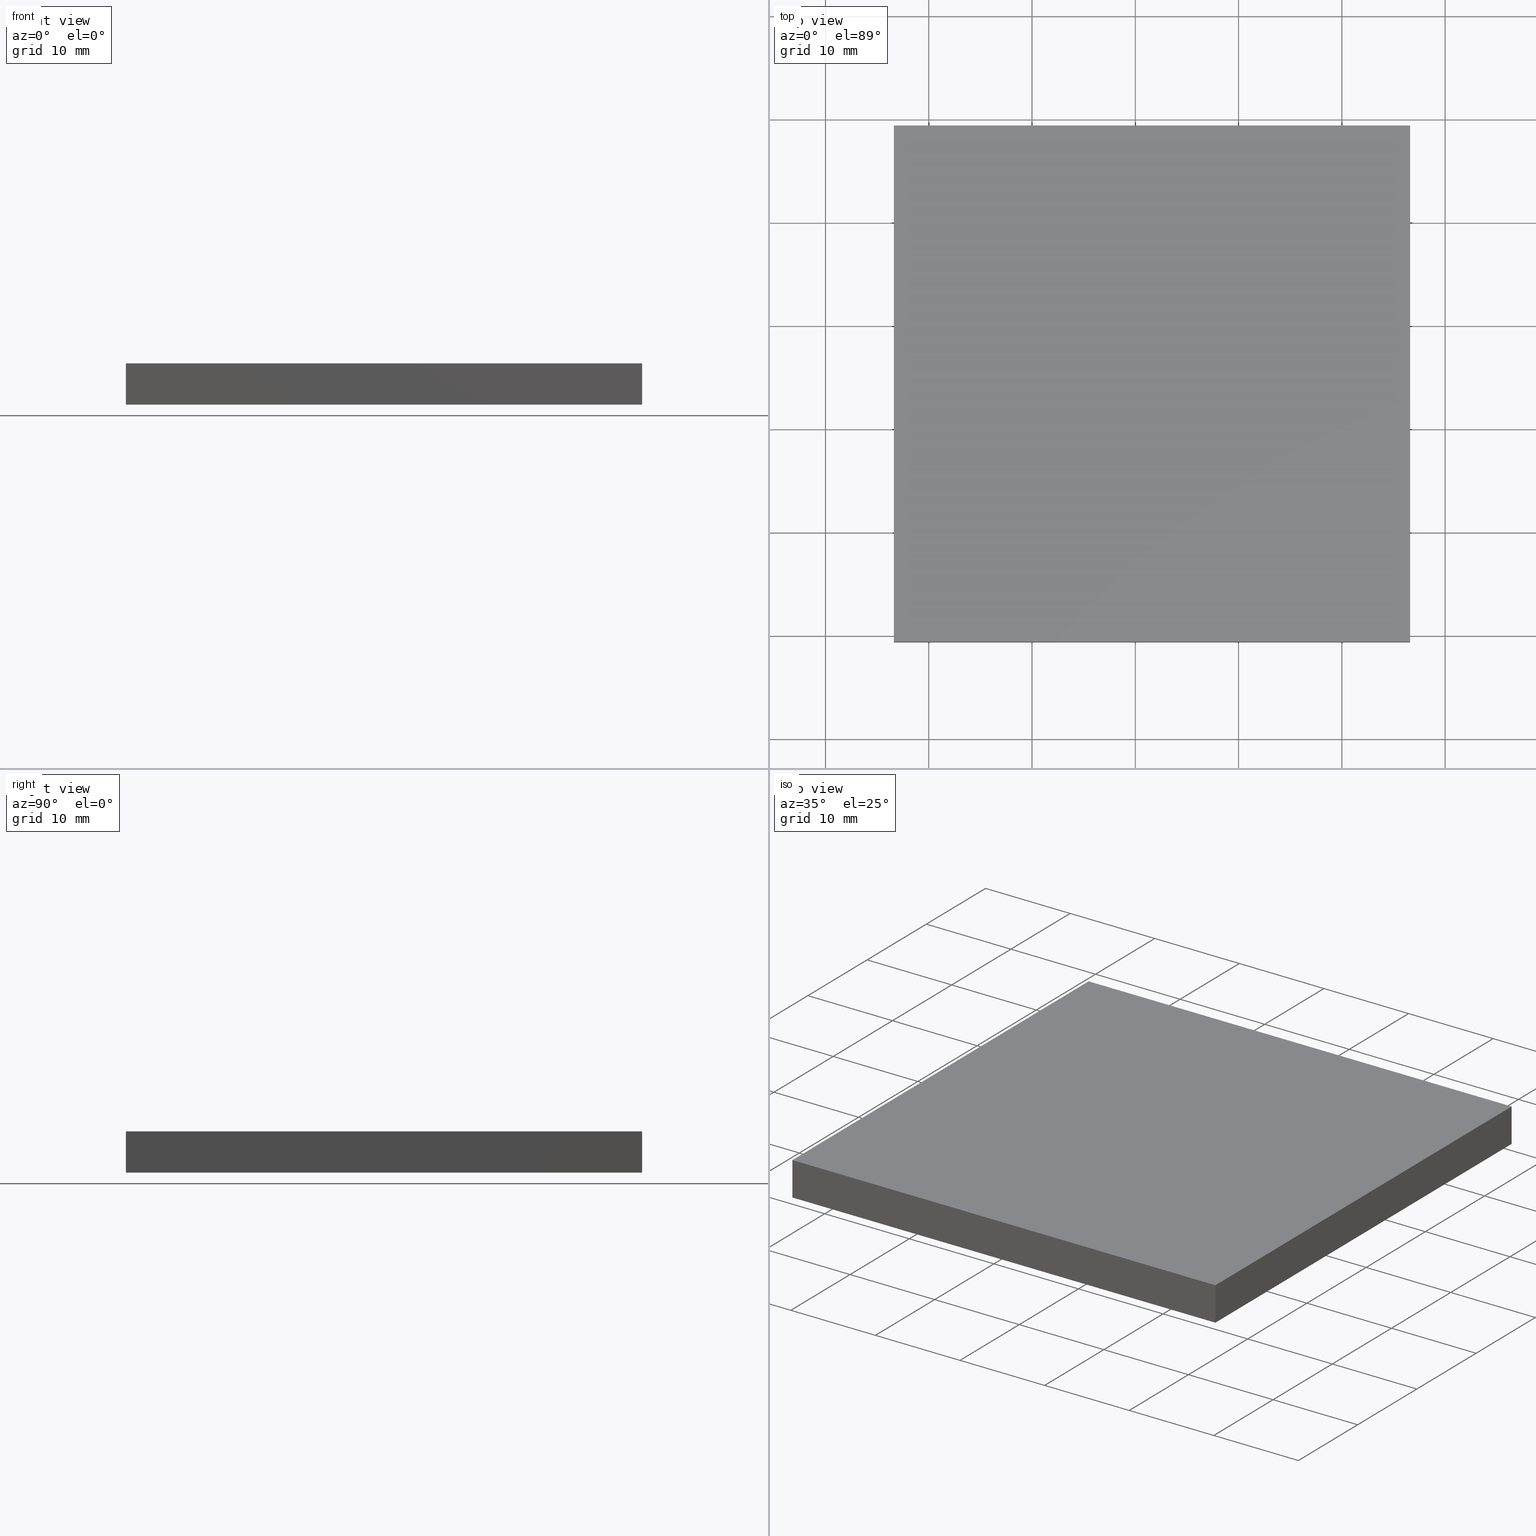
[diagram: canonical four-view strip — front | top / right | iso, engineering-drawing reading convention]
A machine part, canonical four-view strip (front | top / right | iso — engineering-drawing reading convention). The complete STEP part file that produces these views, byte-faithful:
ISO-10303-21;
HEADER;
FILE_DESCRIPTION (( 'STEP AP214' ),
    '1' );
FILE_NAME ('260012.STEP',
    '2019-07-16T03:02:36',
    ( '' ),
    ( '' ),
    'SwSTEP 2.0',
    'SolidWorks 2016',
    '' );
FILE_SCHEMA (( 'AUTOMOTIVE_DESIGN' ));
ENDSEC;

DATA;
#1 = PRODUCT_DEFINITION_SHAPE ( 'NONE', 'NONE',  #145 ) ;
#2 = EDGE_CURVE ( 'NONE', #37, #93, #5, .T. ) ;
#3 = ORIENTED_EDGE ( 'NONE', *, *, #118, .T. ) ;
#4 = LINE ( 'NONE', #100, #159 ) ;
#5 = LINE ( 'NONE', #7, #144 ) ;
#6 = ADVANCED_BREP_SHAPE_REPRESENTATION ( '260012', ( #88, #180 ), #72 ) ;
#7 = CARTESIAN_POINT ( 'NONE',  ( 466.6175434576859400, 179.3843025342640100, 4.000000000000000000 ) ) ;
#8 = VECTOR ( 'NONE', #198, 1000.000000000000000 ) ;
#9 = EDGE_CURVE ( 'NONE', #148, #71, #107, .T. ) ;
#10 = PRESENTATION_STYLE_ASSIGNMENT (( #77 ) ) ;
#11 = DIRECTION ( 'NONE',  ( -0.0000000000000000000, 1.000000000000000000, -0.0000000000000000000 ) ) ;
#12 = SURFACE_SIDE_STYLE ('',( #95 ) ) ;
#13 = STYLED_ITEM ( 'NONE', ( #10 ), #88 ) ;
#14 = VECTOR ( 'NONE', #81, 1000.000000000000000 ) ;
#15 = UNCERTAINTY_MEASURE_WITH_UNIT (LENGTH_MEASURE( 1.000000000000000100E-005 ), #135, 'distance_accuracy_value', 'NONE');
#16 =( LENGTH_UNIT ( ) NAMED_UNIT ( * ) SI_UNIT ( .MILLI., .METRE. ) );
#17 = ADVANCED_FACE ( 'NONE', ( #23 ), #161, .F. ) ;
#18 =( LENGTH_UNIT ( ) NAMED_UNIT ( * ) SI_UNIT ( .MILLI., .METRE. ) );
#19 = PRESENTATION_LAYER_ASSIGNMENT (  '', '', ( #13 ) ) ;
#20 = PRODUCT_DEFINITION_FORMATION_WITH_SPECIFIED_SOURCE ( '�κ�', '', #134, .NOT_KNOWN. ) ;
#21 = FACE_OUTER_BOUND ( 'NONE', #106, .T. ) ;
#22 = VECTOR ( 'NONE', #165, 1000.000000000000000 ) ;
#23 = FACE_OUTER_BOUND ( 'NONE', #86, .T. ) ;
#24 = VECTOR ( 'NONE', #91, 1000.000000000000000 ) ;
#25 = ORIENTED_EDGE ( 'NONE', *, *, #2, .T. ) ;
#26 = CARTESIAN_POINT ( 'NONE',  ( 416.6175434576858800, 179.3843025342640100, 0.0000000000000000000 ) ) ;
#27 = AXIS2_PLACEMENT_3D ( 'NONE', #75, #28, #109 ) ;
#28 = DIRECTION ( 'NONE',  ( 0.0000000000000000000, 1.000000000000000000, -0.0000000000000000000 ) ) ;
#29 = PLANE ( 'NONE',  #27 ) ;
#30 = ORIENTED_EDGE ( 'NONE', *, *, #9, .F. ) ;
#31 = FILL_AREA_STYLE_COLOUR ( '', #162 ) ;
#32 = CARTESIAN_POINT ( 'NONE',  ( 0.0000000000000000000, 0.0000000000000000000, 0.0000000000000000000 ) ) ;
#33 = CARTESIAN_POINT ( 'NONE',  ( 466.6175434576859400, 179.3843025342640100, 4.000000000000000000 ) ) ;
#34 = DIRECTION ( 'NONE',  ( -0.0000000000000000000, -1.000000000000000000, -0.0000000000000000000 ) ) ;
#35 = ORIENTED_EDGE ( 'NONE', *, *, #120, .T. ) ;
#36 = PLANE ( 'NONE',  #55 ) ;
#37 = VERTEX_POINT ( 'NONE', #177 ) ;
#38 = SHAPE_DEFINITION_REPRESENTATION ( #1, #6 ) ;
#39 = EDGE_LOOP ( 'NONE', ( #87, #149, #124, #3 ) ) ;
#40 = VERTEX_POINT ( 'NONE', #195 ) ;
#41 = FILL_AREA_STYLE_COLOUR ( '', #66 ) ;
#42 =( NAMED_UNIT ( * ) SI_UNIT ( $, .STERADIAN. ) SOLID_ANGLE_UNIT ( ) );
#43 = DIRECTION ( 'NONE',  ( 0.0000000000000000000, 0.0000000000000000000, -1.000000000000000000 ) ) ;
#44 = ORIENTED_EDGE ( 'NONE', *, *, #172, .T. ) ;
#45 = CARTESIAN_POINT ( 'NONE',  ( 416.6175434576858800, 129.3843025342640100, 4.000000000000000000 ) ) ;
#46 =( NAMED_UNIT ( * ) SI_UNIT ( $, .STERADIAN. ) SOLID_ANGLE_UNIT ( ) );
#47 = UNCERTAINTY_MEASURE_WITH_UNIT (LENGTH_MEASURE( 1.000000000000000100E-005 ), #16, 'distance_accuracy_value', 'NONE');
#48 = DIRECTION ( 'NONE',  ( 1.000000000000000000, 0.0000000000000000000, 0.0000000000000000000 ) ) ;
#49 = ORIENTED_EDGE ( 'NONE', *, *, #56, .T. ) ;
#50 = AXIS2_PLACEMENT_3D ( 'NONE', #125, #199, #51 ) ;
#51 = DIRECTION ( 'NONE',  ( 0.0000000000000000000, -0.0000000000000000000, -1.000000000000000000 ) ) ;
#52 = SURFACE_STYLE_USAGE ( .BOTH. , #12 ) ;
#53 = FACE_OUTER_BOUND ( 'NONE', #189, .T. ) ;
#54 = CLOSED_SHELL ( 'NONE', ( #82, #160, #142, #104, #17, #166 ) ) ;
#55 = AXIS2_PLACEMENT_3D ( 'NONE', #33, #79, #187 ) ;
#56 = EDGE_CURVE ( 'NONE', #93, #148, #146, .T. ) ;
#57 = VECTOR ( 'NONE', #185, 1000.000000000000000 ) ;
#58 = SURFACE_STYLE_FILL_AREA ( #196 ) ;
#59 = PRODUCT_RELATED_PRODUCT_CATEGORY ( 'part', '', ( #134 ) ) ;
#60 = CARTESIAN_POINT ( 'NONE',  ( 416.6175434576858800, 179.3843025342640100, 0.0000000000000000000 ) ) ;
#61 = LINE ( 'NONE', #181, #14 ) ;
#62 = SURFACE_SIDE_STYLE ('',( #58 ) ) ;
#63 = CARTESIAN_POINT ( 'NONE',  ( 466.6175434576859400, 129.3843025342640100, 4.000000000000000000 ) ) ;
#64 = AXIS2_PLACEMENT_3D ( 'NONE', #154, #140, #163 ) ;
#65 =( NAMED_UNIT ( * ) PLANE_ANGLE_UNIT ( ) SI_UNIT ( $, .RADIAN. ) );
#66 = COLOUR_RGB ( '',1.000000000000000000, 1.000000000000000000, 1.000000000000000000 ) ;
#67 = CARTESIAN_POINT ( 'NONE',  ( 466.6175434576859400, 179.3843025342640100, 0.0000000000000000000 ) ) ;
#68 =( NAMED_UNIT ( * ) PLANE_ANGLE_UNIT ( ) SI_UNIT ( $, .RADIAN. ) );
#69 = LINE ( 'NONE', #113, #57 ) ;
#70 = LINE ( 'NONE', #45, #182 ) ;
#71 = VERTEX_POINT ( 'NONE', #26 ) ;
#72 =( GEOMETRIC_REPRESENTATION_CONTEXT ( 3 ) GLOBAL_UNCERTAINTY_ASSIGNED_CONTEXT ( ( #47 ) ) GLOBAL_UNIT_ASSIGNED_CONTEXT ( ( #16, #65, #78 ) ) REPRESENTATION_CONTEXT ( 'NONE', 'WORKASPACE' ) );
#73 = ORIENTED_EDGE ( 'NONE', *, *, #118, .F. ) ;
#74 = MECHANICAL_DESIGN_GEOMETRIC_PRESENTATION_REPRESENTATION (  '', ( #13 ), #102 ) ;
#75 = CARTESIAN_POINT ( 'NONE',  ( 466.6175434576859400, 129.3843025342640100, 4.000000000000000000 ) ) ;
#76 = ORIENTED_EDGE ( 'NONE', *, *, #120, .F. ) ;
#77 = SURFACE_STYLE_USAGE ( .BOTH. , #62 ) ;
#78 =( NAMED_UNIT ( * ) SI_UNIT ( $, .STERADIAN. ) SOLID_ANGLE_UNIT ( ) );
#79 = DIRECTION ( 'NONE',  ( -1.000000000000000000, 0.0000000000000000000, 0.0000000000000000000 ) ) ;
#80 = STYLED_ITEM ( 'NONE', ( #178 ), #6 ) ;
#81 = DIRECTION ( 'NONE',  ( -0.0000000000000000000, -0.0000000000000000000, -1.000000000000000000 ) ) ;
#82 = ADVANCED_FACE ( 'NONE', ( #21 ), #29, .F. ) ;
#83 = AXIS2_PLACEMENT_3D ( 'NONE', #123, #137, #43 ) ;
#84 = EDGE_CURVE ( 'NONE', #130, #40, #70, .T. ) ;
#85 = LINE ( 'NONE', #63, #90 ) ;
#86 = EDGE_LOOP ( 'NONE', ( #127, #35, #25, #110 ) ) ;
#87 = ORIENTED_EDGE ( 'NONE', *, *, #170, .T. ) ;
#88 = MANIFOLD_SOLID_BREP ( '͹̨-����1', #54 ) ;
#89 = CARTESIAN_POINT ( 'NONE',  ( 0.0000000000000000000, 0.0000000000000000000, 4.000000000000000000 ) ) ;
#90 = VECTOR ( 'NONE', #94, 1000.000000000000000 ) ;
#91 = DIRECTION ( 'NONE',  ( -0.0000000000000000000, -0.0000000000000000000, -1.000000000000000000 ) ) ;
#92 =( GEOMETRIC_REPRESENTATION_CONTEXT ( 3 ) GLOBAL_UNCERTAINTY_ASSIGNED_CONTEXT ( ( #147 ) ) GLOBAL_UNIT_ASSIGNED_CONTEXT ( ( #18, #68, #46 ) ) REPRESENTATION_CONTEXT ( 'NONE', 'WORKASPACE' ) );
#93 = VERTEX_POINT ( 'NONE', #111 ) ;
#94 = DIRECTION ( 'NONE',  ( -0.0000000000000000000, -0.0000000000000000000, -1.000000000000000000 ) ) ;
#95 = SURFACE_STYLE_FILL_AREA ( #99 ) ;
#96 = DIRECTION ( 'NONE',  ( -1.000000000000000000, 0.0000000000000000000, -0.0000000000000000000 ) ) ;
#97 = DIRECTION ( 'NONE',  ( -0.0000000000000000000, 1.000000000000000000, -0.0000000000000000000 ) ) ;
#98 = PRESENTATION_LAYER_ASSIGNMENT (  '', '', ( #80 ) ) ;
#99 = FILL_AREA_STYLE ('',( #31 ) ) ;
#100 = CARTESIAN_POINT ( 'NONE',  ( 466.6175434576859400, 179.3843025342640100, 0.0000000000000000000 ) ) ;
#101 = APPLICATION_PROTOCOL_DEFINITION ( 'draft international standard', 'automotive_design', 1998, #200 ) ;
#102 =( GEOMETRIC_REPRESENTATION_CONTEXT ( 3 ) GLOBAL_UNCERTAINTY_ASSIGNED_CONTEXT ( ( #15 ) ) GLOBAL_UNIT_ASSIGNED_CONTEXT ( ( #135, #158, #42 ) ) REPRESENTATION_CONTEXT ( 'NONE', 'WORKASPACE' ) );
#103 = LINE ( 'NONE', #143, #8 ) ;
#104 = ADVANCED_FACE ( 'NONE', ( #201 ), #138, .F. ) ;
#105 = PLANE ( 'NONE',  #64 ) ;
#106 = EDGE_LOOP ( 'NONE', ( #44, #73, #76, #116 ) ) ;
#107 = LINE ( 'NONE', #60, #169 ) ;
#108 = LINE ( 'NONE', #183, #22 ) ;
#109 = DIRECTION ( 'NONE',  ( 0.0000000000000000000, 0.0000000000000000000, 1.000000000000000000 ) ) ;
#110 = ORIENTED_EDGE ( 'NONE', *, *, #175, .T. ) ;
#111 = CARTESIAN_POINT ( 'NONE',  ( 466.6175434576859400, 179.3843025342640100, 4.000000000000000000 ) ) ;
#112 = EDGE_LOOP ( 'NONE', ( #156, #191, #30, #136 ) ) ;
#113 = CARTESIAN_POINT ( 'NONE',  ( 466.6175434576859400, 129.3843025342640100, 4.000000000000000000 ) ) ;
#114 = DIRECTION ( 'NONE',  ( -0.0000000000000000000, -0.0000000000000000000, -1.000000000000000000 ) ) ;
#115 = CARTESIAN_POINT ( 'NONE',  ( 466.6175434576859400, 129.3843025342640100, 0.0000000000000000000 ) ) ;
#116 = ORIENTED_EDGE ( 'NONE', *, *, #190, .T. ) ;
#117 = PRODUCT_CONTEXT ( 'NONE', #200, 'mechanical' ) ;
#118 = EDGE_CURVE ( 'NONE', #37, #176, #85, .T. ) ;
#119 = ORIENTED_EDGE ( 'NONE', *, *, #193, .T. ) ;
#120 = EDGE_CURVE ( 'NONE', #40, #37, #69, .T. ) ;
#121 = AXIS2_PLACEMENT_3D ( 'NONE', #89, #122, #96 ) ;
#122 = DIRECTION ( 'NONE',  ( 0.0000000000000000000, 0.0000000000000000000, -1.000000000000000000 ) ) ;
#123 = CARTESIAN_POINT ( 'NONE',  ( 416.6175434576858800, 154.3843025342640100, 4.000000000000000000 ) ) ;
#124 = ORIENTED_EDGE ( 'NONE', *, *, #2, .F. ) ;
#125 = CARTESIAN_POINT ( 'NONE',  ( 416.6175434576858800, 179.3843025342640100, 4.000000000000000000 ) ) ;
#126 = CARTESIAN_POINT ( 'NONE',  ( 416.6175434576858800, 129.3843025342640100, 0.0000000000000000000 ) ) ;
#127 = ORIENTED_EDGE ( 'NONE', *, *, #84, .T. ) ;
#128 = CARTESIAN_POINT ( 'NONE',  ( 416.6175434576858800, 154.3843025342640100, 0.0000000000000000000 ) ) ;
#129 = LINE ( 'NONE', #168, #171 ) ;
#130 = VERTEX_POINT ( 'NONE', #141 ) ;
#131 = MECHANICAL_DESIGN_GEOMETRIC_PRESENTATION_REPRESENTATION (  '', ( #80 ), #92 ) ;
#132 = VECTOR ( 'NONE', #34, 1000.000000000000000 ) ;
#133 = ORIENTED_EDGE ( 'NONE', *, *, #175, .F. ) ;
#134 = PRODUCT ( '260012', '260012', '', ( #117 ) ) ;
#135 =( LENGTH_UNIT ( ) NAMED_UNIT ( * ) SI_UNIT ( .MILLI., .METRE. ) );
#136 = ORIENTED_EDGE ( 'NONE', *, *, #170, .F. ) ;
#137 = DIRECTION ( 'NONE',  ( 1.000000000000000000, 0.0000000000000000000, 0.0000000000000000000 ) ) ;
#138 = PLANE ( 'NONE',  #83 ) ;
#139 = DIRECTION ( 'NONE',  ( 0.0000000000000000000, 0.0000000000000000000, 1.000000000000000000 ) ) ;
#140 = DIRECTION ( 'NONE',  ( 0.0000000000000000000, 0.0000000000000000000, -1.000000000000000000 ) ) ;
#141 = CARTESIAN_POINT ( 'NONE',  ( 416.6175434576858800, 179.3843025342640100, 4.000000000000000000 ) ) ;
#142 = ADVANCED_FACE ( 'NONE', ( #53 ), #186, .F. ) ;
#143 = CARTESIAN_POINT ( 'NONE',  ( 416.6175434576858800, 179.3843025342640100, 4.000000000000000000 ) ) ;
#144 = VECTOR ( 'NONE', #11, 1000.000000000000000 ) ;
#145 = PRODUCT_DEFINITION ( 'δ֪', '', #20, #194 ) ;
#146 = LINE ( 'NONE', #179, #24 ) ;
#147 = UNCERTAINTY_MEASURE_WITH_UNIT (LENGTH_MEASURE( 1.000000000000000100E-005 ), #18, 'distance_accuracy_value', 'NONE');
#148 = VERTEX_POINT ( 'NONE', #67 ) ;
#149 = ORIENTED_EDGE ( 'NONE', *, *, #56, .F. ) ;
#150 = DIRECTION ( 'NONE',  ( -1.000000000000000000, -0.0000000000000000000, -0.0000000000000000000 ) ) ;
#151 = EDGE_LOOP ( 'NONE', ( #119, #152, #188, #197 ) ) ;
#152 = ORIENTED_EDGE ( 'NONE', *, *, #190, .F. ) ;
#153 = APPLICATION_CONTEXT ( 'automotive_design' ) ;
#154 = CARTESIAN_POINT ( 'NONE',  ( 0.0000000000000000000, 0.0000000000000000000, 0.0000000000000000000 ) ) ;
#155 = VERTEX_POINT ( 'NONE', #126 ) ;
#156 = ORIENTED_EDGE ( 'NONE', *, *, #172, .F. ) ;
#157 = ORIENTED_EDGE ( 'NONE', *, *, #9, .T. ) ;
#158 =( NAMED_UNIT ( * ) PLANE_ANGLE_UNIT ( ) SI_UNIT ( $, .RADIAN. ) );
#159 = VECTOR ( 'NONE', #97, 1000.000000000000000 ) ;
#160 = ADVANCED_FACE ( 'NONE', ( #192 ), #36, .F. ) ;
#161 = PLANE ( 'NONE',  #121 ) ;
#162 = COLOUR_RGB ( '',1.000000000000000000, 1.000000000000000000, 1.000000000000000000 ) ;
#163 = DIRECTION ( 'NONE',  ( -1.000000000000000000, 0.0000000000000000000, -0.0000000000000000000 ) ) ;
#164 = APPLICATION_PROTOCOL_DEFINITION ( 'draft international standard', 'automotive_design', 1998, #153 ) ;
#165 = DIRECTION ( 'NONE',  ( 1.000000000000000000, -0.0000000000000000000, -0.0000000000000000000 ) ) ;
#166 = ADVANCED_FACE ( 'NONE', ( #173 ), #105, .T. ) ;
#167 = LINE ( 'NONE', #128, #132 ) ;
#168 = CARTESIAN_POINT ( 'NONE',  ( 416.6175434576858800, 179.3843025342640100, 4.000000000000000000 ) ) ;
#169 = VECTOR ( 'NONE', #150, 1000.000000000000000 ) ;
#170 = EDGE_CURVE ( 'NONE', #176, #148, #4, .T. ) ;
#171 = VECTOR ( 'NONE', #114, 1000.000000000000000 ) ;
#172 = EDGE_CURVE ( 'NONE', #155, #176, #108, .T. ) ;
#173 = FACE_OUTER_BOUND ( 'NONE', #112, .T. ) ;
#174 = DIRECTION ( 'NONE',  ( -0.0000000000000000000, -1.000000000000000000, -0.0000000000000000000 ) ) ;
#175 = EDGE_CURVE ( 'NONE', #93, #130, #103, .T. ) ;
#176 = VERTEX_POINT ( 'NONE', #115 ) ;
#177 = CARTESIAN_POINT ( 'NONE',  ( 466.6175434576859400, 129.3843025342640100, 4.000000000000000000 ) ) ;
#178 = PRESENTATION_STYLE_ASSIGNMENT (( #52 ) ) ;
#179 = CARTESIAN_POINT ( 'NONE',  ( 466.6175434576859400, 179.3843025342640100, 4.000000000000000000 ) ) ;
#180 = AXIS2_PLACEMENT_3D ( 'NONE', #32, #139, #48 ) ;
#181 = CARTESIAN_POINT ( 'NONE',  ( 416.6175434576858800, 129.3843025342640100, 4.000000000000000000 ) ) ;
#182 = VECTOR ( 'NONE', #174, 1000.000000000000000 ) ;
#183 = CARTESIAN_POINT ( 'NONE',  ( 466.6175434576859400, 129.3843025342640100, 0.0000000000000000000 ) ) ;
#184 = EDGE_CURVE ( 'NONE', #130, #71, #129, .T. ) ;
#185 = DIRECTION ( 'NONE',  ( 1.000000000000000000, -0.0000000000000000000, -0.0000000000000000000 ) ) ;
#186 = PLANE ( 'NONE',  #50 ) ;
#187 = DIRECTION ( 'NONE',  ( 0.0000000000000000000, 0.0000000000000000000, 1.000000000000000000 ) ) ;
#188 = ORIENTED_EDGE ( 'NONE', *, *, #84, .F. ) ;
#189 = EDGE_LOOP ( 'NONE', ( #157, #202, #133, #49 ) ) ;
#190 = EDGE_CURVE ( 'NONE', #40, #155, #61, .T. ) ;
#191 = ORIENTED_EDGE ( 'NONE', *, *, #193, .F. ) ;
#192 = FACE_OUTER_BOUND ( 'NONE', #39, .T. ) ;
#193 = EDGE_CURVE ( 'NONE', #71, #155, #167, .T. ) ;
#194 = PRODUCT_DEFINITION_CONTEXT ( 'detailed design', #153, 'design' ) ;
#195 = CARTESIAN_POINT ( 'NONE',  ( 416.6175434576858800, 129.3843025342640100, 4.000000000000000000 ) ) ;
#196 = FILL_AREA_STYLE ('',( #41 ) ) ;
#197 = ORIENTED_EDGE ( 'NONE', *, *, #184, .T. ) ;
#198 = DIRECTION ( 'NONE',  ( -1.000000000000000000, -0.0000000000000000000, -0.0000000000000000000 ) ) ;
#199 = DIRECTION ( 'NONE',  ( 0.0000000000000000000, -1.000000000000000000, 0.0000000000000000000 ) ) ;
#200 = APPLICATION_CONTEXT ( 'automotive_design' ) ;
#201 = FACE_OUTER_BOUND ( 'NONE', #151, .T. ) ;
#202 = ORIENTED_EDGE ( 'NONE', *, *, #184, .F. ) ;
ENDSEC;
END-ISO-10303-21;
